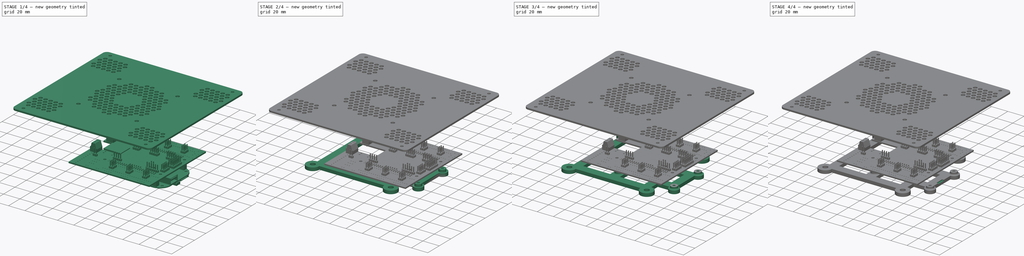
[diagram: build sequence overview — one tinted view per stage of 4, left to right]
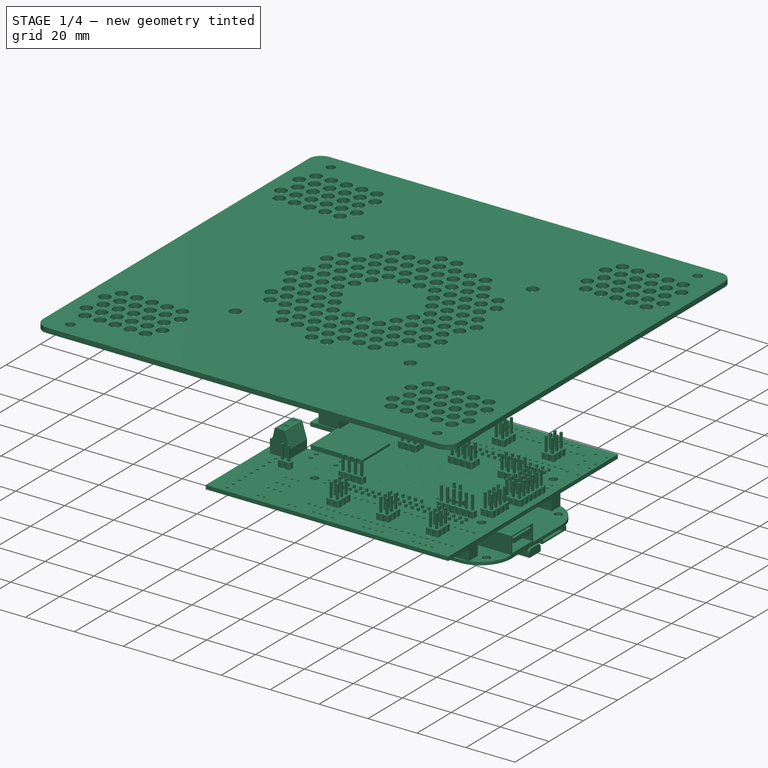
[diagram: stage 1 of 4 — iso view after this stage's code; geometry added in this stage tinted green]
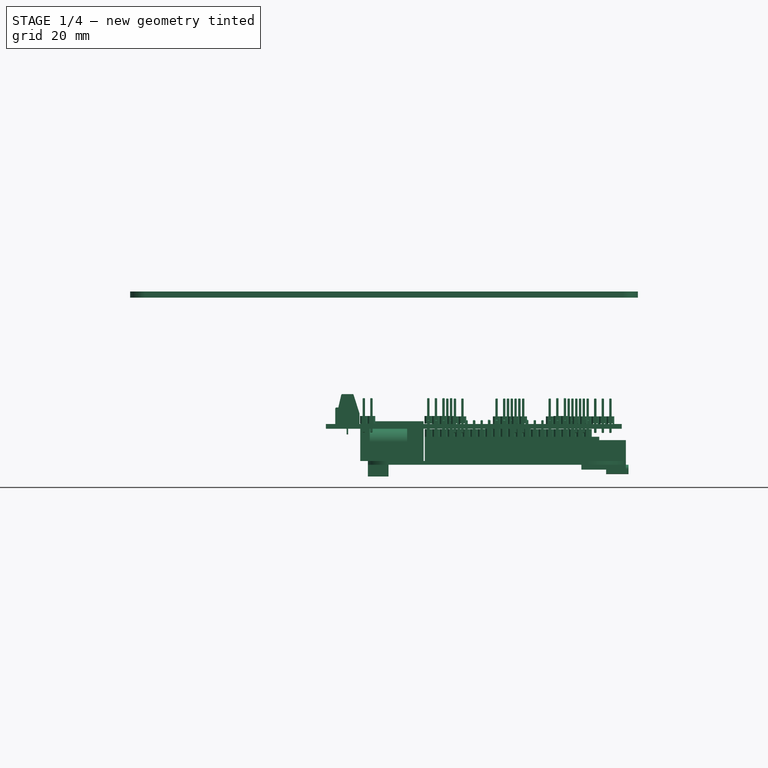
[diagram: stage 1 of 4 — front view after this stage's code; geometry added in this stage tinted green]
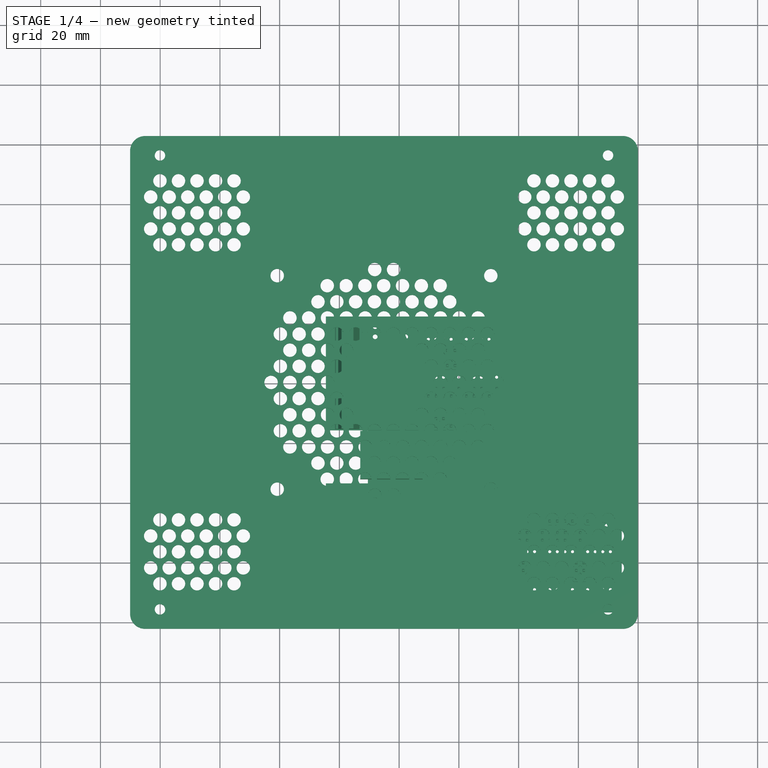
[diagram: stage 1 of 4 — top view after this stage's code; geometry added in this stage tinted green]
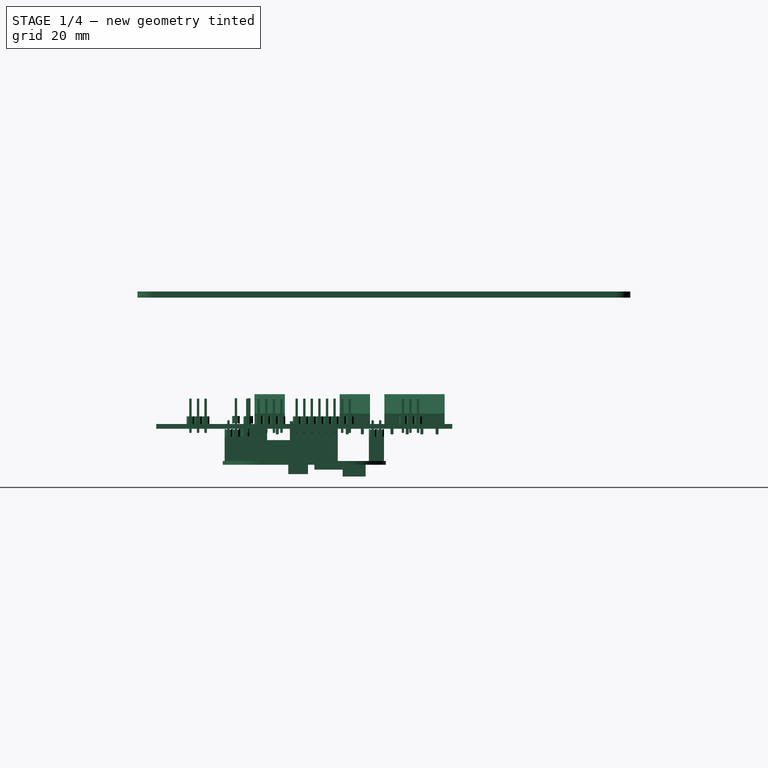
[diagram: stage 1 of 4 — right view after this stage's code; geometry added in this stage tinted green]
FCSTD DOCUMENT  (FreeCAD 0.15R4671 (Git))
Label: control_box_assembly_test
License: All rights reserved
LicenseURL: http://en.wikipedia.org/wiki/All_rights_reserved
objects: App::FeaturePython×28, Part::FeaturePython×5, Sketcher::SketchObject×3, PartDesign::Pad×2, PartDesign::Fillet×1, Part::MultiFuse×1, PartDesign::Pocket×1, PartDesign::Chamfer×1, Part::MultiCommon×1
note: 18 computed .brp shape members not serialized (recipe doc carries the construction recipe); baked Part::Feature solids carry a one-line shape summary decoded from their .brp

FEATURE [Part::FeaturePython] beaglebone_black_01  label="beaglebone_black"  # a2plus imported part (geometry in sourceFile) (typed FeaturePython)
  Placement = pos=(27,0,0) rot=(0,0,1;0rad)
  fixedPosition = true
  sourceFile = <userpath>/Grive/Lulzbot_TAZ_5/electronics/control_box/beaglebone_black.fcstd
  timeLastImport = 1.45782e+09
  updateColors = true
FEATURE [App::FeaturePython] planeConstraint04  label="planeConstraint04_brack_bot"  # a2plus constraint (typed FeaturePython)
  Object1 = Common
  Object2 = control_box_enclosure_01
  SubElement1 = Face44
  SubElement2 = Face44
  Type = plane
  directionConstraint = 0
  offset = 0
FEATURE [App::FeaturePython] planeConstraint04_mirror  label="planeConstraint04_brack_bot_"  # a2plus constraint (typed FeaturePython)
  Object1 = Common
  Object2 = control_box_enclosure_01
  SubElement1 = Face44
  SubElement2 = Face44
  Type = plane
  directionConstraint = 0
  offset = 0
FEATURE [App::FeaturePython] axialConstraint01  label="axialConstraint01_brack_pin1"  # a2plus constraint (typed FeaturePython)
  Object1 = control_box_enclosure_01
  Object2 = Common
  SubElement1 = Face85
  SubElement2 = Face41
  Type = axial
  directionConstraint = 0
  lockRotation = false
FEATURE [App::FeaturePython] axialConstraint01_mirror  label="axialConstraint01_brack_pin1_"  # a2plus constraint (typed FeaturePython)
  Object1 = control_box_enclosure_01
  Object2 = Common
  SubElement1 = Face85
  SubElement2 = Face41
  Type = axial
  directionConstraint = 0
  lockRotation = false
FEATURE [App::FeaturePython] axialConstraint02  label="axialConstraint02_brack_pin2"  # a2plus constraint (typed FeaturePython)
  Object1 = control_box_enclosure_01
  Object2 = Common
  SubElement1 = Face87
  SubElement2 = Face42
  Type = axial
  directionConstraint = 0
  lockRotation = false
FEATURE [App::FeaturePython] axialConstraint02_mirror  label="axialConstraint02_brack_pin2_"  # a2plus constraint (typed FeaturePython)
  Object1 = control_box_enclosure_01
  Object2 = Common
  SubElement1 = Face87
  SubElement2 = Face42
  Type = axial
  directionConstraint = 0
  lockRotation = false
FEATURE [Part::FeaturePython] CRAMPS_3D_step1_01  # a2plus imported part (geometry in sourceFile) (typed FeaturePython)
  Placement = pos=(-35.32,56.485,12.07) rot=(0,0,1;0rad)
  fixedPosition = false
  sourceFile = <userpath>/Grive/Lulzbot_TAZ_5/electronics/control_box/CRAMPS_3D.step
  timeLastImport = 1.45767e+09
  updateColors = true
FEATURE [App::FeaturePython] planeConstraint05  # a2plus constraint (typed FeaturePython)
  Object1 = beaglebone_black_01
  Object2 = CRAMPS_3D_step1_01
  SubElement1 = Face77
  SubElement2 = Face2060
  Type = plane
  directionConstraint = 0
  offset = 0
FEATURE [App::FeaturePython] planeConstraint05_mirror  label="planeConstraint05_"  # a2plus constraint (typed FeaturePython)
  Object1 = beaglebone_black_01
  Object2 = CRAMPS_3D_step1_01
  SubElement1 = Face77
  SubElement2 = Face2060
  Type = plane
  directionConstraint = 0
  offset = 0
FEATURE [App::FeaturePython] planeConstraint06  # a2plus constraint (typed FeaturePython)
  Object1 = CRAMPS_3D_step1_01
  Object2 = beaglebone_black_01
  SubElement1 = Face1344
  SubElement2 = Face62
  Type = plane
  directionConstraint = 0
  offset = 0
FEATURE [App::FeaturePython] planeConstraint06_mirror  label="planeConstraint06_"  # a2plus constraint (typed FeaturePython)
  Object1 = CRAMPS_3D_step1_01
  Object2 = beaglebone_black_01
  SubElement1 = Face1344
  SubElement2 = Face62
  Type = plane
  directionConstraint = 0
  offset = 0
FEATURE [App::FeaturePython] planeConstraint07  # a2plus constraint (typed FeaturePython)
  Object1 = CRAMPS_3D_step1_01
  Object2 = beaglebone_black_01
  SubElement1 = Face1690
  SubElement2 = Face60
  Type = plane
  directionConstraint = 0
  offset = 0
FEATURE [App::FeaturePython] planeConstraint07_mirror  label="planeConstraint07_"  # a2plus constraint (typed FeaturePython)
  Object1 = CRAMPS_3D_step1_01
  Object2 = beaglebone_black_01
  SubElement1 = Face1690
  SubElement2 = Face60
  Type = plane
  directionConstraint = 0
  offset = 0
FEATURE [Part::FeaturePython] _0mm_fan_igs1_01  # a2plus imported part (geometry in sourceFile) (typed FeaturePython)
  Placement = pos=(10.7919,-58.0615,-14.4383) rot=(1,0,0;1.5708rad)
  fixedPosition = false
  sourceFile = <userpath>/Grive/Lulzbot_TAZ_5/electronics/control_box/80mm_fan.igs
  timeLastImport = 1.45767e+09
  updateColors = true
FEATURE [Part::FeaturePython] electronics_cover_revA_fc0_1_01  # a2plus imported part (geometry in sourceFile) (typed FeaturePython)
  Placement = pos=(34.93,-0.640001,58.002) rot=(1,0,0;1.5708rad)
  fixedPosition = false
  sourceFile = <userpath>/Grive/Lulzbot_TAZ_5/electronics/control_box/electronics_cover_revA_fc0.1.fcstd
  timeLastImport = 1440915044
  updateColors = true
FEATURE [App::FeaturePython] planeConstraint08  # a2plus constraint (typed FeaturePython)
  Object1 = control_box_enclosure_01
  Object2 = electronics_cover_revA_fc0_1_01
  SubElement1 = Face95
  SubElement2 = Face5
  Type = plane
  directionConstraint = 1
  offset = 0
FEATURE [App::FeaturePython] planeConstraint08_mirror  label="planeConstraint08_"  # a2plus constraint (typed FeaturePython)
  Object1 = control_box_enclosure_01
  Object2 = electronics_cover_revA_fc0_1_01
  SubElement1 = Face95
  SubElement2 = Face5
  Type = plane
  directionConstraint = 1
  offset = 0
FEATURE [App::FeaturePython] planeConstraint09  # a2plus constraint (typed FeaturePython)
  Object1 = electronics_cover_revA_fc0_1_01
  Object2 = control_box_enclosure_01
  SubElement1 = Face7
  SubElement2 = Face16
  Type = plane
  directionConstraint = 0
  offset = 0
FEATURE [App::FeaturePython] planeConstraint09_mirror  label="planeConstraint09_"  # a2plus constraint (typed FeaturePython)
  Object1 = electronics_cover_revA_fc0_1_01
  Object2 = control_box_enclosure_01
  SubElement1 = Face7
  SubElement2 = Face16
  Type = plane
  directionConstraint = 0
  offset = 0
FEATURE [App::FeaturePython] planeConstraint10  # a2plus constraint (typed FeaturePython)
  Object1 = electronics_cover_revA_fc0_1_01
  Object2 = control_box_enclosure_01
  SubElement1 = Face1
  SubElement2 = Face18
  Type = plane
  directionConstraint = 0
  offset = 0
FEATURE [App::FeaturePython] planeConstraint10_mirror  label="planeConstraint10_"  # a2plus constraint (typed FeaturePython)
  Object1 = electronics_cover_revA_fc0_1_01
  Object2 = control_box_enclosure_01
  SubElement1 = Face1
  SubElement2 = Face18
  Type = plane
  directionConstraint = 0
  offset = 0
FEATURE [App::FeaturePython] axialConstraint03  # a2plus constraint (typed FeaturePython)
  Object1 = _0mm_fan_igs1_01
  Object2 = electronics_cover_revA_fc0_1_01
  SubElement1 = Face31
  SubElement2 = Face27
  Type = axial
  directionConstraint = 1
  lockRotation = true
FEATURE [App::FeaturePython] axialConstraint03_mirror  label="axialConstraint03_"  # a2plus constraint (typed FeaturePython)
  Object1 = _0mm_fan_igs1_01
  Object2 = electronics_cover_revA_fc0_1_01
  SubElement1 = Face31
  SubElement2 = Face27
  Type = axial
  directionConstraint = 1
  lockRotation = true
FEATURE [App::FeaturePython] planeConstraint11  # a2plus constraint (typed FeaturePython)
  Object1 = _0mm_fan_igs1_01
  Object2 = electronics_cover_revA_fc0_1_01
  SubElement1 = Face60
  SubElement2 = Face5
  Type = plane
  directionConstraint = 0
  offset = 0
FEATURE [App::FeaturePython] planeConstraint11_mirror  label="planeConstraint11_"  # a2plus constraint (typed FeaturePython)
  Object1 = _0mm_fan_igs1_01
  Object2 = electronics_cover_revA_fc0_1_01
  SubElement1 = Face60
  SubElement2 = Face5
  Type = plane
  directionConstraint = 0
  offset = 0
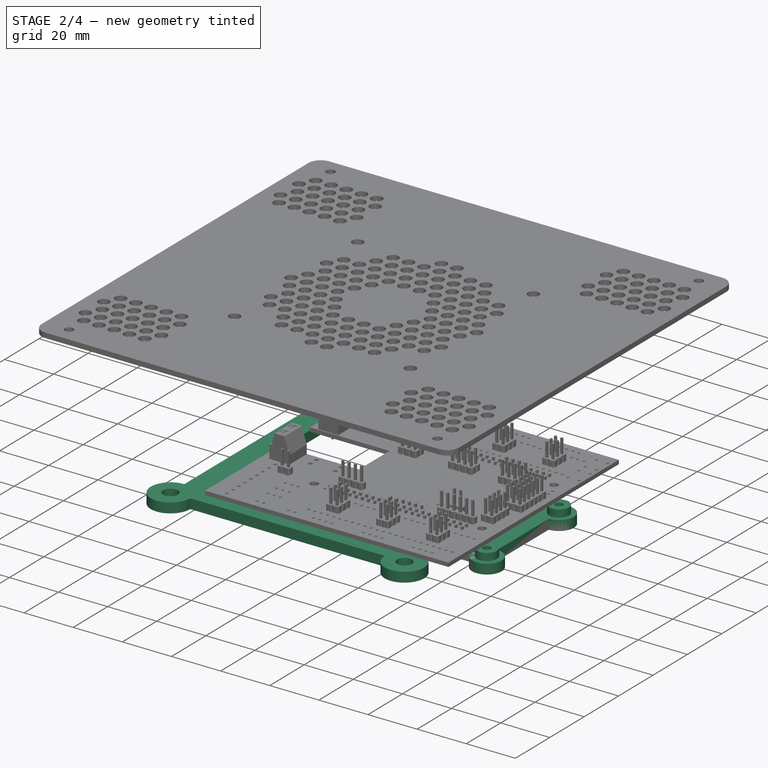
[diagram: stage 2 of 4 — iso view after this stage's code; geometry added in this stage tinted green]
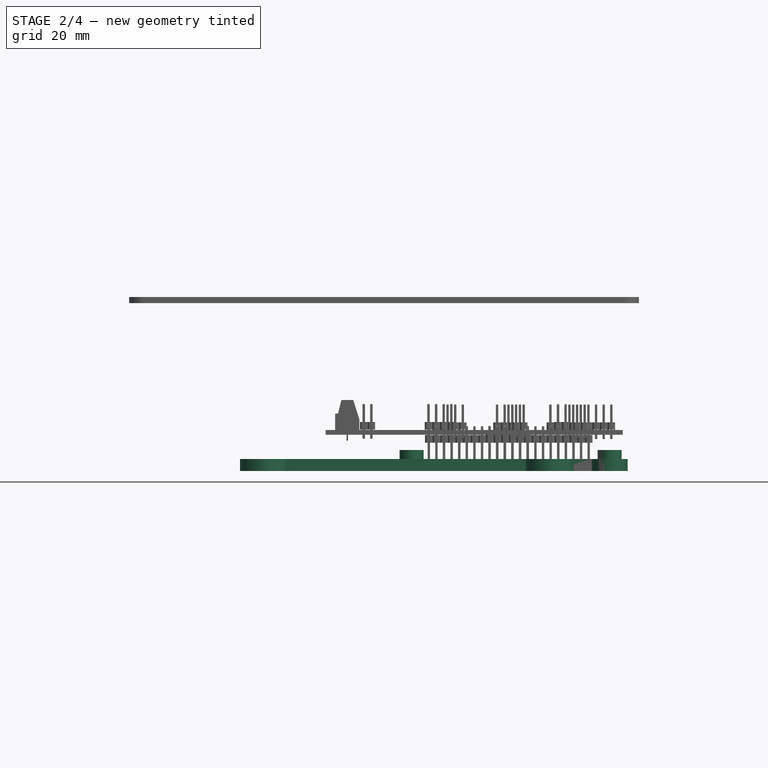
[diagram: stage 2 of 4 — front view after this stage's code; geometry added in this stage tinted green]
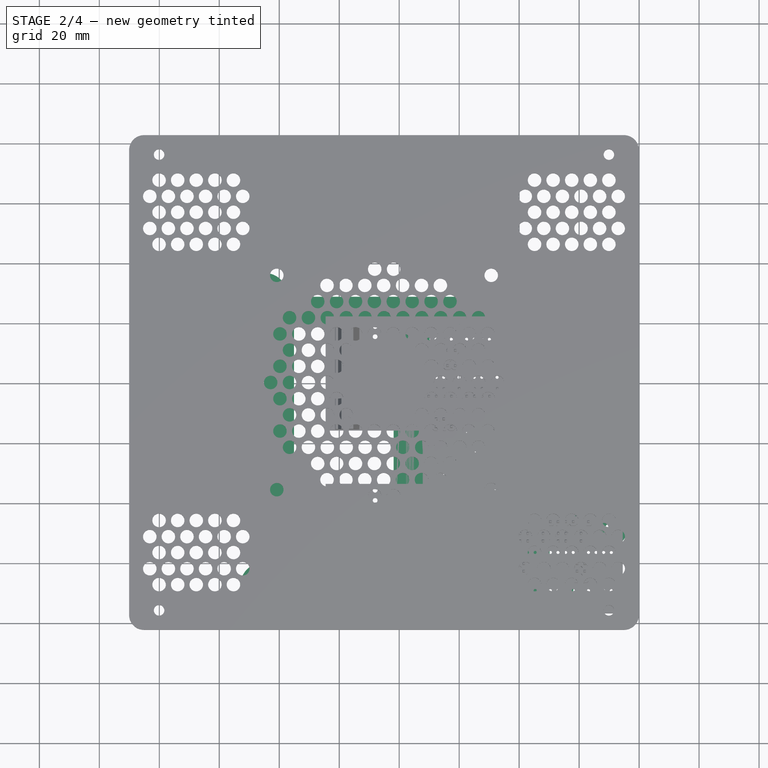
[diagram: stage 2 of 4 — top view after this stage's code; geometry added in this stage tinted green]
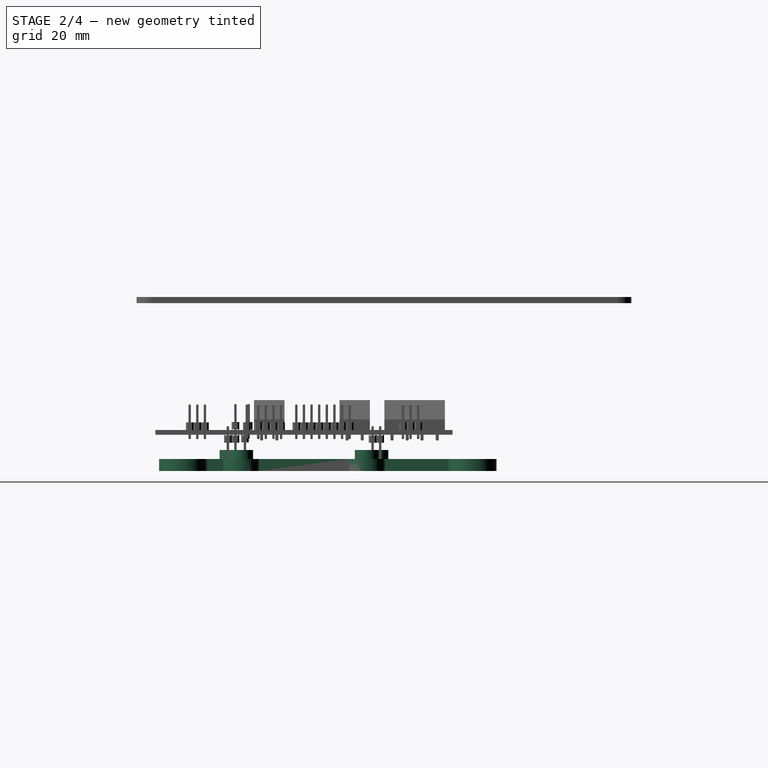
[diagram: stage 2 of 4 — right view after this stage's code; geometry added in this stage tinted green]
FEATURE [Part::FeaturePython] control_box_enclosure_01  label="control_box_enclosure"  # a2plus imported part (geometry in sourceFile) (typed FeaturePython)
  Placement = pos=(-50.07,-83.14,-9.03) rot=(0,0,1;0rad)
  fixedPosition = false
  sourceFile = <userpath>/Grive/Lulzbot_TAZ_5/electronics/control_box/control_box_enclosure.fcstd
  timeLastImport = 1457669303
  updateColors = true
FEATURE [App::FeaturePython] planeConstraint01  label="planeConstraint01_bb_vert"  # a2plus constraint (typed FeaturePython)
  Object1 = beaglebone_black_01
  Object2 = control_box_enclosure_01
  SubElement1 = Face6
  SubElement2 = Face44
  Type = plane
  directionConstraint = 1
  offset = 7
FEATURE [App::FeaturePython] planeConstraint01_mirror  label="planeConstraint01_bb_vert_"  # a2plus constraint (typed FeaturePython)
  Object1 = beaglebone_black_01
  Object2 = control_box_enclosure_01
  SubElement1 = Face6
  SubElement2 = Face44
  Type = plane
  directionConstraint = 1
  offset = 7
FEATURE [App::FeaturePython] planeConstraint02  label="planeConstraint02_bb_fb"  # a2plus constraint (typed FeaturePython)
  Object1 = beaglebone_black_01
  Object2 = control_box_enclosure_01
  SubElement1 = Face15
  SubElement2 = Face89
  Type = plane
  directionConstraint = 1
  offset = 2
FEATURE [App::FeaturePython] planeConstraint02_mirror  label="planeConstraint02_bb_fb_"  # a2plus constraint (typed FeaturePython)
  Object1 = beaglebone_black_01
  Object2 = control_box_enclosure_01
  SubElement1 = Face15
  SubElement2 = Face89
  Type = plane
  directionConstraint = 1
  offset = 2
FEATURE [App::FeaturePython] planeConstraint03  label="planeConstraint03_bb_lr"  # a2plus constraint (typed FeaturePython)
  Object1 = beaglebone_black_01
  Object2 = control_box_enclosure_01
  SubElement1 = Face20
  SubElement2 = Face90
  Type = plane
  directionConstraint = 0
  offset = 26.5
FEATURE [App::FeaturePython] planeConstraint03_mirror  label="planeConstraint03_bb_lr_"  # a2plus constraint (typed FeaturePython)
  Object1 = beaglebone_black_01
  Object2 = control_box_enclosure_01
  SubElement1 = Face20
  SubElement2 = Face90
  Type = plane
  directionConstraint = 0
  offset = 26.5
FEATURE [Sketcher::SketchObject] Sketch005  label="bbb_hole_pattern_plan"
  ExternalGeometry = -> [beaglebone_black_01,control_box_enclosure_01]
  sketch-geometry (34):
    g0: Circle CenterX=44.145 CenterY=-51.435 CenterZ=0 NormalX=0 NormalY=0 NormalZ=1 Radius=1.5
    g1: Circle CenterX=110.185 CenterY=-48.26 CenterZ=0 NormalX=0 NormalY=0 NormalZ=1 Radius=1.5
    g2: Circle CenterX=44.145 CenterY=-3.175 CenterZ=0 NormalX=0 NormalY=0 NormalZ=1 Radius=1.5
    g3: Circle CenterX=110.185 CenterY=-6.35 CenterZ=0 NormalX=0 NormalY=0 NormalZ=1 Radius=1.5
    g4: ArcOfCircle CenterX=-5.07 CenterY=28.88 CenterZ=0 NormalX=0 NormalY=0 NormalZ=1 Radius=8 StartAngle=0 EndAngle=4.71239
    g5: ArcOfCircle CenterX=-5.07 CenterY=-67.64 CenterZ=0 NormalX=0 NormalY=0 NormalZ=1 Radius=8 StartAngle=1.5708 EndAngle=6.28319
    g6: ArcOfCircle CenterX=90.18 CenterY=28.88 CenterZ=0 NormalX=0 NormalY=0 NormalZ=1 Radius=8 StartAngle=4.71239 EndAngle=9.42478
    g7: ArcOfCircle CenterX=90.18 CenterY=-67.64 CenterZ=0 NormalX=0 NormalY=0 NormalZ=1 Radius=8 StartAngle=3.14159 EndAngle=7.85398
    g8: LineSegment StartX=-5.07 StartY=20.88 StartZ=0 EndX=-5.07 EndY=-59.64 EndZ=0
    g9: LineSegment StartX=2.93 StartY=28.88 StartZ=0 EndX=82.18 EndY=28.88 EndZ=0
    g10: LineSegment StartX=2.93 StartY=-67.64 StartZ=0 EndX=82.18 EndY=-67.64 EndZ=0
    g11: LineSegment StartX=4.93 StartY=18.88 StartZ=0 EndX=38.145 EndY=18.88 EndZ=0
    g12: LineSegment StartX=38.145 StartY=18.88 StartZ=0 EndX=38.145 EndY=-57.64 EndZ=0
    g13: LineSegment StartX=38.145 StartY=-57.64 StartZ=0 EndX=4.93 EndY=-57.64 EndZ=0
    g14: LineSegment StartX=4.93 StartY=-57.64 StartZ=0 EndX=4.93 EndY=18.88 EndZ=0
    g15: LineSegment StartX=50.145 StartY=18.88 StartZ=0 EndX=80.18 EndY=18.88 EndZ=0
    g16: LineSegment StartX=80.18 StartY=18.88 StartZ=0 EndX=80.18 EndY=-57.64 EndZ=0
    g17: LineSegment StartX=80.18 StartY=-57.64 StartZ=0 EndX=50.145 EndY=-57.64 EndZ=0
    g18: LineSegment StartX=50.145 StartY=-57.64 StartZ=0 EndX=50.145 EndY=18.88 EndZ=0
    g19: LineSegment StartX=90.18 StartY=20.88 StartZ=0 EndX=90.18 EndY=-6.35 EndZ=0
    g20: LineSegment StartX=90.18 StartY=-6.35 StartZ=0 EndX=104.185 EndY=-6.35 EndZ=0
    g21: ArcOfCircle CenterX=110.185 CenterY=-6.35 CenterZ=0 NormalX=0 NormalY=0 NormalZ=1 Radius=6 StartAngle=4.71239 EndAngle=9.42478
    g22: LineSegment StartX=110.185 StartY=-12.35 StartZ=0 EndX=110.185 EndY=-42.26 EndZ=0
    g23: ArcOfCircle CenterX=110.185 CenterY=-48.26 CenterZ=0 NormalX=0 NormalY=0 NormalZ=1 Radius=6 StartAngle=3.14159 EndAngle=7.85398
    g24: LineSegment StartX=104.185 StartY=-48.26 StartZ=0 EndX=90.18 EndY=-48.26 EndZ=0
    g25: LineSegment StartX=90.18 StartY=-48.26 StartZ=0 EndX=90.18 EndY=-59.64 EndZ=0
    g26: LineSegment StartX=90.18 StartY=-16.35 StartZ=0 EndX=100.185 EndY=-16.35 EndZ=0
    g27: LineSegment StartX=100.185 StartY=-16.35 StartZ=0 EndX=100.185 EndY=-38.26 EndZ=0
    g28: LineSegment StartX=100.185 StartY=-38.26 StartZ=0 EndX=90.18 EndY=-38.26 EndZ=0
    g29: LineSegment StartX=90.18 StartY=-38.26 StartZ=0 EndX=90.18 EndY=-16.35 EndZ=0
    g30: Circle CenterX=-5.07 CenterY=28.88 CenterZ=0 NormalX=0 NormalY=0 NormalZ=1 Radius=3
    g31: Circle CenterX=-5.07 CenterY=-67.64 CenterZ=0 NormalX=0 NormalY=0 NormalZ=1 Radius=3
    g32: Circle CenterX=90.18 CenterY=-67.64 CenterZ=0 NormalX=0 NormalY=0 NormalZ=1 Radius=3
    g33: Circle CenterX=90.18 CenterY=28.88 CenterZ=0 NormalX=0 NormalY=0 NormalZ=1 Radius=3
  constraints (94):
    c: Coincident(g1,g-6)
    c: Coincident(g2,g-4)
    c: Coincident(g3,g-5)
    c: Equal(g0,g1)
    c: Equal(g1,g2)
    c: Equal(g2,g3)
    c: Radius(g0) = 1.5
    c: Coincident(g0,g-3)
    c: Coincident(g4,g-7)
    c: Coincident(g5,g-10)
    c: Coincident(g6,g-8)
    c: Coincident(g7,g-9)
    c: Coincident(g8,g4)
    c: Coincident(g8,g5)
    c: Vertical(g8)
    c: PointOnObject(g4,g8)
    c: Equal(g4,g5)
    c: Equal(g5,g7)
    c: Equal(g7,g6)
    c: Radius(g4) = 8
    c: Coincident(g9,g4)
    c: Horizontal(g9)
    c: Coincident(g6,g9)
    c: PointOnObject(g4,g9)
    c: Coincident(g10,g5)
    c: Coincident(g10,g7)
    c: Horizontal(g10)
    c: PointOnObject(g7,g10)
    c: Coincident(g11,g12)
    c: Coincident(g12,g13)
    c: Coincident(g13,g14)
    c: Coincident(g14,g11)
    c: Horizontal(g11)
    c: Horizontal(g13)
    c: Vertical(g12)
    c: Vertical(g14)
    c: DistanceX(g13,g5) = -10
    c: DistanceY(g13,g5) = -10
    c: DistanceY(g11,g4) = 10
    c: DistanceX(g2,g11) = -6
    c: Coincident(g15,g16)
    c: Coincident(g16,g17)
    c: Coincident(g17,g18)
    c: Coincident(g18,g15)
    c: Horizontal(g15)
    c: Horizontal(g17)
    c: Vertical(g16)
    c: Vertical(g18)
    c: DistanceX(g15,g6) = 10
    c: PointOnObject(g15,g11)
    c: PointOnObject(g17,g13)
    c: DistanceX(g2,g15) = 6
    c: Coincident(g19,g6)
    c: Vertical(g19)
    c: Coincident(g20,g19)
    c: Horizontal(g20)
    c: PointOnObject(g6,g19)
    c: Coincident(g21,g3)
    c: Coincident(g21,g20)
    c: PointOnObject(g3,g20)
    c: Coincident(g22,g21)
    c: Vertical(g22)
    c: Coincident(g23,g1)
    c: Coincident(g23,g22)
    c: Radius(g21) = 6
    c: Equal(g23,g21)
    c: PointOnObject(g3,g22)
    c: Coincident(g24,g23)
    c: Horizontal(g24)
    c: Coincident(g25,g24)
    c: Vertical(g25)
    c: Coincident(g7,g25)
    c: PointOnObject(g7,g25)
    c: PointOnObject(g1,g24)
    c: Coincident(g26,g27)
    c: Coincident(g27,g28)
    c: Coincident(g28,g29)
    c: Coincident(g29,g26)
    c: Horizontal(g26)
    c: Horizontal(g28)
    c: Vertical(g27)
    c: Vertical(g29)
    c: PointOnObject(g28,g25)
    c: DistanceY(g26,g19) = 10
    c: DistanceY(g28,g24) = -10
    c: DistanceX(g27,g22) = 10
    c: Coincident(g30,g4)
    c: Coincident(g31,g5)
    c: Coincident(g32,g7)
    c: Coincident(g33,g6)
    c: Equal(g30,g31)
    c: Equal(g31,g32)
    c: Equal(g32,g33)
    c: Radius(g30) = 3
FEATURE [PartDesign::Pad] Pad  label="bbb_hole_pattern"
  Length = 4
  Length2 = 100
  Sketch = -> Sketch005
  Type = 0
FEATURE [Sketcher::SketchObject] Sketch  label="top_supports"
  ExternalGeometry = -> [Pad]
  Placement = pos=(0,0,4) rot=(0,0,1;0rad)
  Support = -> Pad [Face36]
  sketch-geometry (8):
    g0: Circle CenterX=44.145 CenterY=-3.175 CenterZ=0 NormalX=0 NormalY=0 NormalZ=1 Radius=1.5
    g1: Circle CenterX=110.185 CenterY=-6.35 CenterZ=0 NormalX=0 NormalY=0 NormalZ=1 Radius=1.5
    g2: Circle CenterX=44.145 CenterY=-51.435 CenterZ=0 NormalX=0 NormalY=0 NormalZ=1 Radius=1.5
    g3: Circle CenterX=110.185 CenterY=-48.26 CenterZ=0 NormalX=0 NormalY=0 NormalZ=1 Radius=1.5
    g4: Circle CenterX=44.145 CenterY=-3.175 CenterZ=0 NormalX=0 NormalY=0 NormalZ=1 Radius=4
    g5: Circle CenterX=44.145 CenterY=-51.435 CenterZ=0 NormalX=0 NormalY=0 NormalZ=1 Radius=4
    g6: Circle CenterX=110.185 CenterY=-48.26 CenterZ=0 NormalX=0 NormalY=0 NormalZ=1 Radius=4
    g7: Circle CenterX=110.185 CenterY=-6.35 CenterZ=0 NormalX=0 NormalY=0 NormalZ=1 Radius=4
  constraints (16):
    c: Coincident(g0,g-3)
    c: Coincident(g1,g-6)
    c: Coincident(g2,g-4)
    c: Coincident(g3,g-5)
    c: Equal(g0,g2)
    c: Equal(g2,g3)
    c: Equal(g3,g1)
    c: Radius(g0) = 1.5
    c: Coincident(g4,g0)
    c: Coincident(g5,g2)
    c: Coincident(g6,g3)
    c: Coincident(g7,g1)
    c: Equal(g4,g7)
    c: Equal(g7,g6)
    c: Equal(g6,g5)
    c: Radius(g4) = 4
FEATURE [PartDesign::Pad] Pad001  label="top_supports_final"
  Length = 3
  Length2 = 100
  Sketch = -> Sketch
  Type = 0
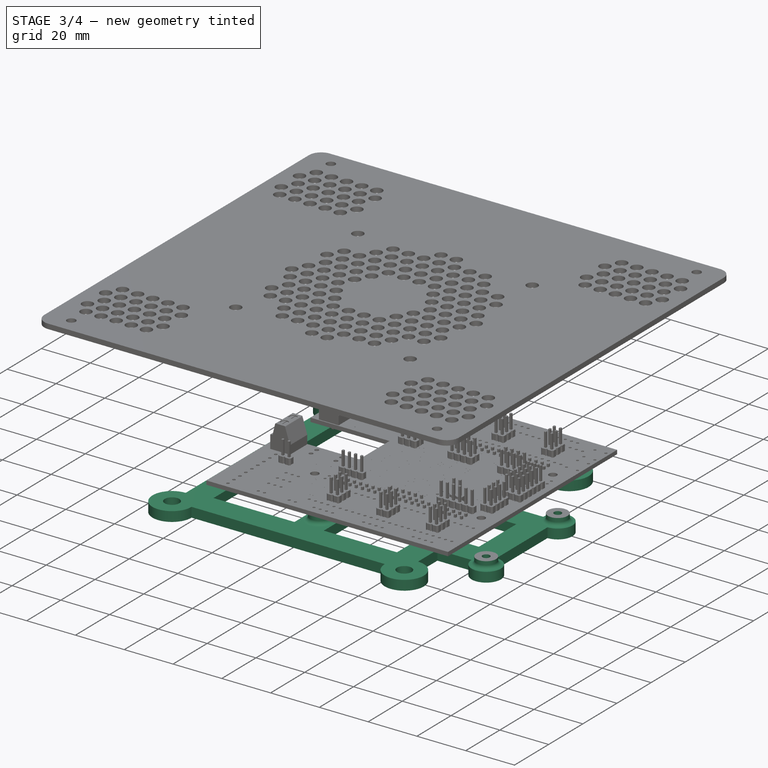
[diagram: stage 3 of 4 — iso view after this stage's code; geometry added in this stage tinted green]
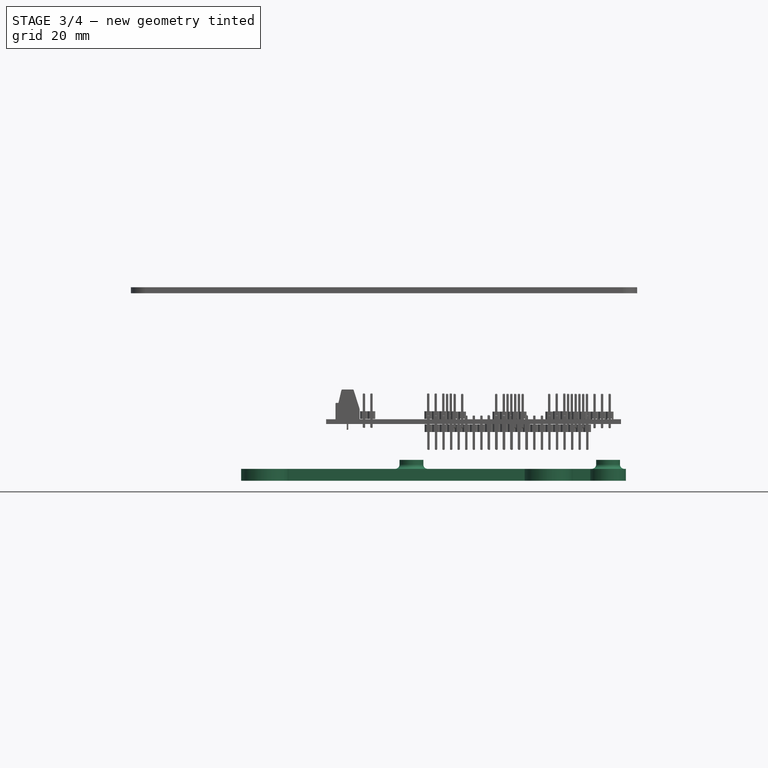
[diagram: stage 3 of 4 — front view after this stage's code; geometry added in this stage tinted green]
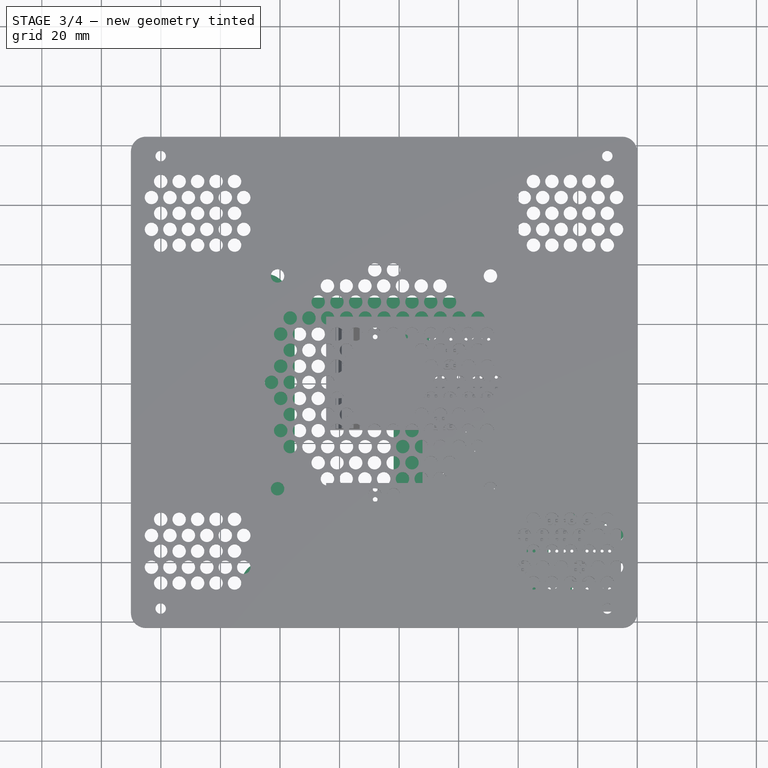
[diagram: stage 3 of 4 — top view after this stage's code; geometry added in this stage tinted green]
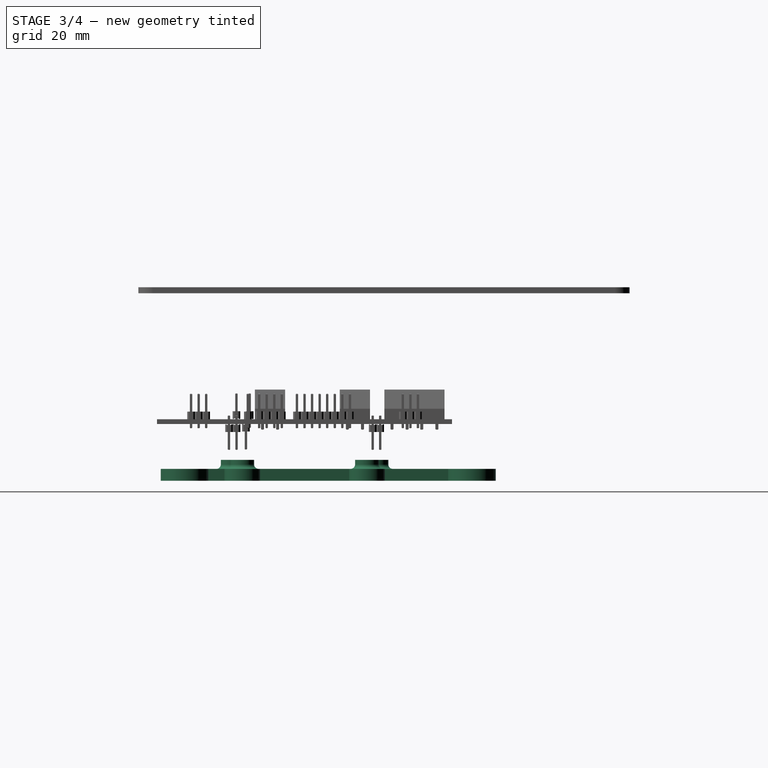
[diagram: stage 3 of 4 — right view after this stage's code; geometry added in this stage tinted green]
FEATURE [PartDesign::Fillet] Fillet  label="top_support_fillets"
  Base = -> Pad001 [Edge53,Edge60,Edge61,Edge59]
  Radius = 1.5
FEATURE [Part::MultiFuse] Fusion  label="base_rough"
  Placement = pos=(0,0,-7) rot=(0,0,1;0rad)
  Shapes = -> [Pad,Fillet,Pad001]
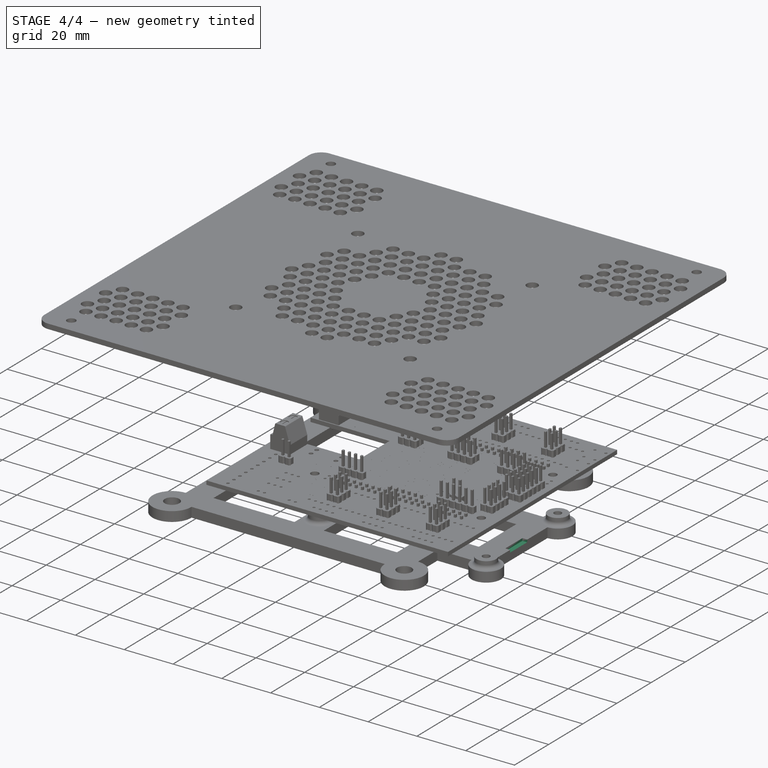
[diagram: stage 4 of 4 — iso view after this stage's code; geometry added in this stage tinted green]
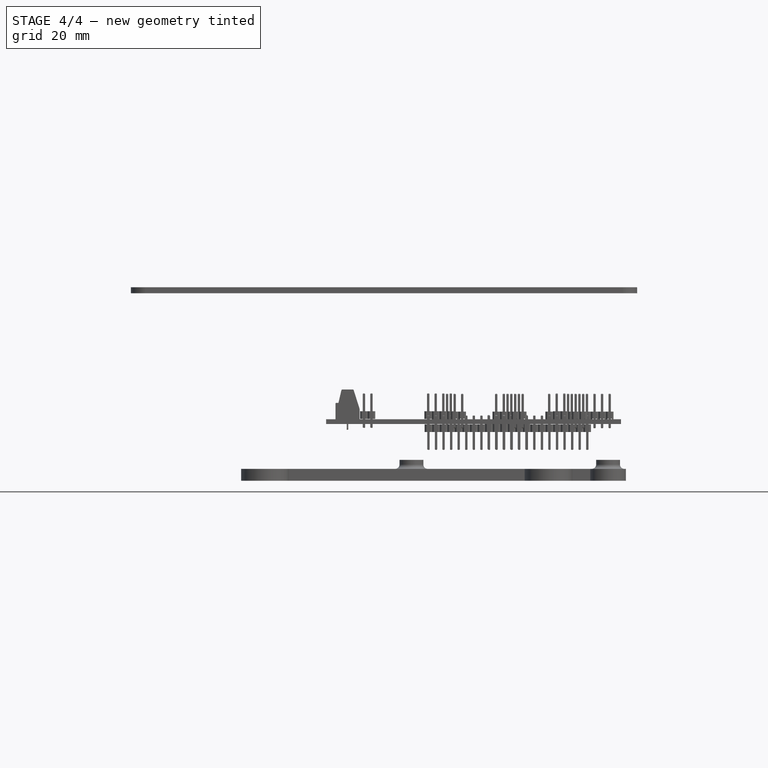
[diagram: stage 4 of 4 — front view after this stage's code; geometry added in this stage tinted green]
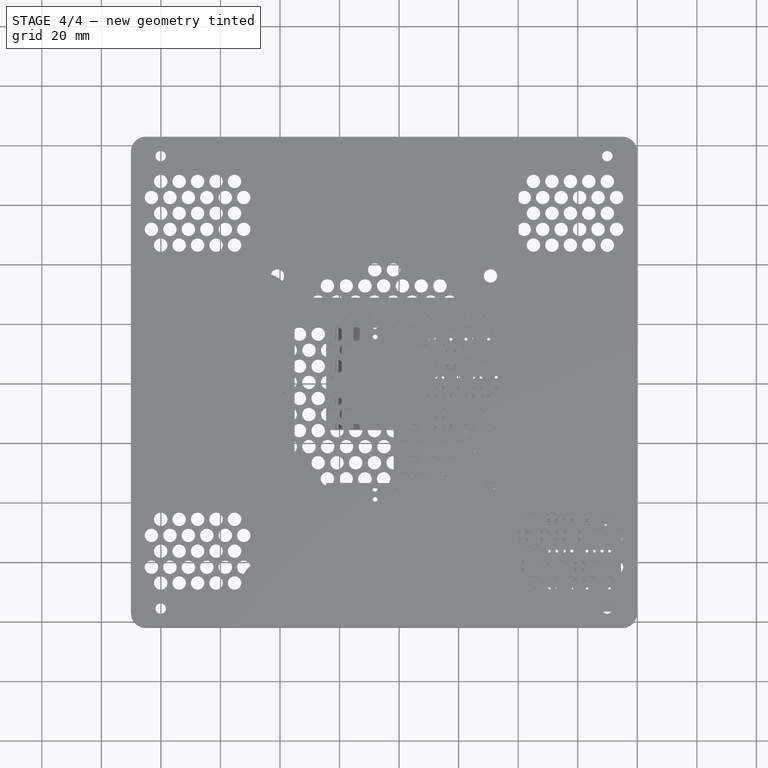
[diagram: stage 4 of 4 — top view after this stage's code; geometry added in this stage tinted green]
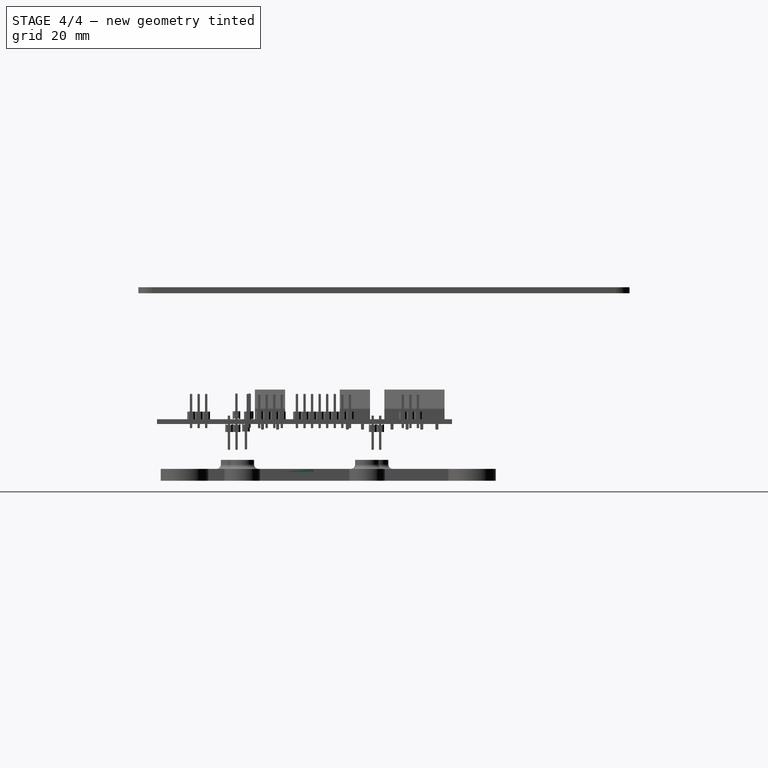
[diagram: stage 4 of 4 — right view after this stage's code; geometry added in this stage tinted green]
FEATURE [Sketcher::SketchObject] Sketch006  label="hdmi_clearance_plan"
  ExternalGeometry = -> [Fusion]
  Placement = pos=(110.185,0,-7) rot=(0.57735,0.57735,0.57735;2.0944rad)
  Support = -> Fusion [Face17]
  sketch-geometry (4):
    g0: LineSegment StartX=-34.26 StartY=3 StartZ=0 EndX=-24.26 EndY=3 EndZ=0
    g1: LineSegment StartX=-24.26 StartY=3 StartZ=0 EndX=-24.26 EndY=4 EndZ=0
    g2: LineSegment StartX=-24.26 StartY=4 StartZ=0 EndX=-34.26 EndY=4 EndZ=0
    g3: LineSegment StartX=-34.26 StartY=4 StartZ=0 EndX=-34.26 EndY=3 EndZ=0
  constraints (12):
    c: Coincident(g0,g1)
    c: Coincident(g1,g2)
    c: Coincident(g2,g3)
    c: Coincident(g3,g0)
    c: Horizontal(g0)
    c: Horizontal(g2)
    c: Vertical(g1)
    c: Vertical(g3)
    c: PointOnObject(g2,g-3)
    c: DistanceX(g2,g-3) = -8
    c: DistanceX(g0) = 10
    c: DistanceY(g1) = 1
FEATURE [PartDesign::Pocket] Pocket  label="hdmi_clearance"
  Length = 2
  Placement = pos=(0,0,-7) rot=(0,0,1;0rad)
  Sketch = -> Sketch006
  Type = 0
FEATURE [PartDesign::Chamfer] Chamfer
  Base = -> Fusion [Edge110,Edge111,Edge112,Edge108]
  Placement = pos=(0,0,-7) rot=(0,0,1;0rad)
  Size = 1.5
FEATURE [Part::MultiCommon] Common  label="bbb_support_bracket"
  Shapes = -> [Fusion,Pocket,Chamfer]
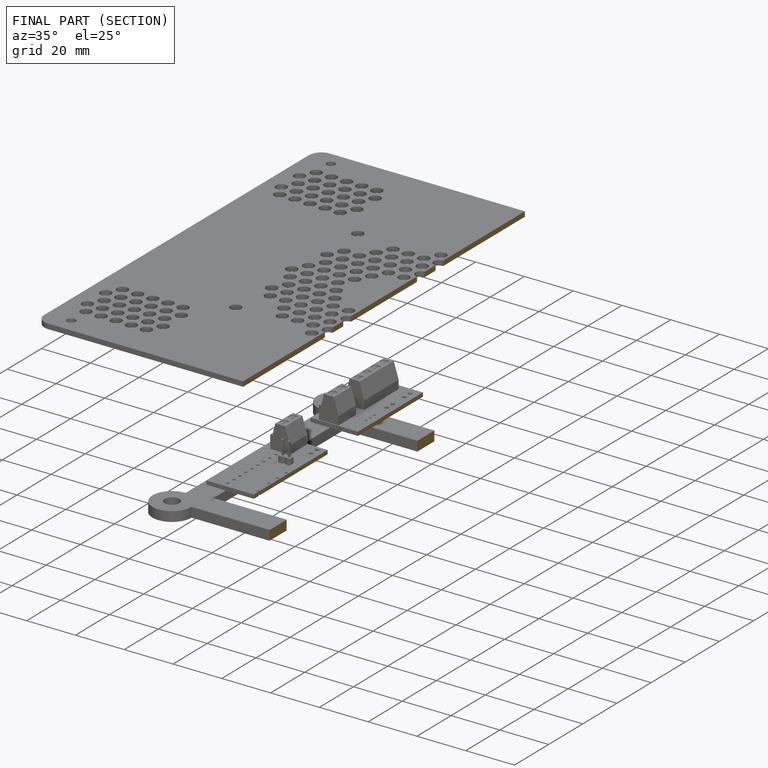
[diagram: finished part — half-section view (interior)]
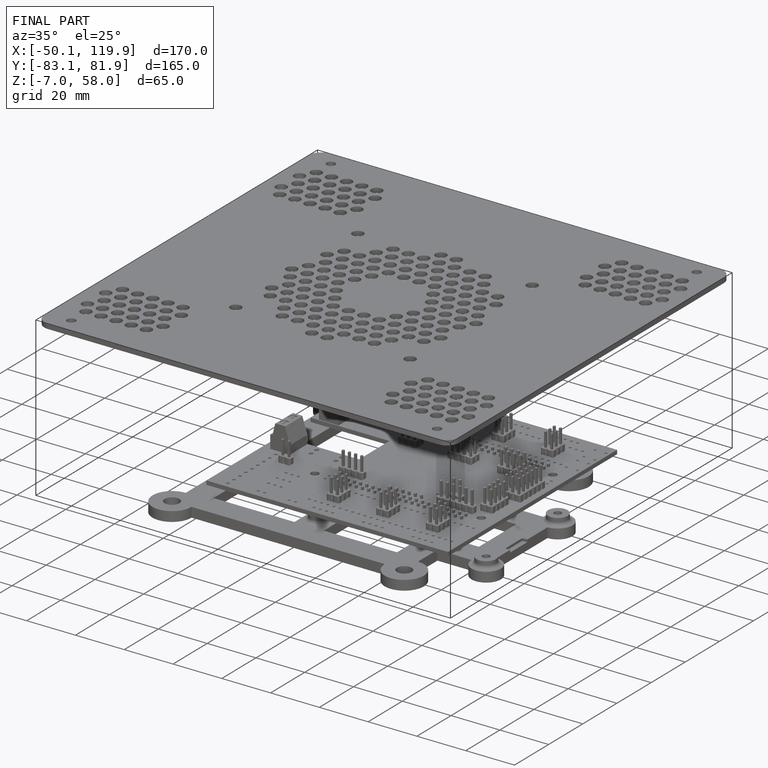
[diagram: finished part — iso view with bounding-box wireframe]
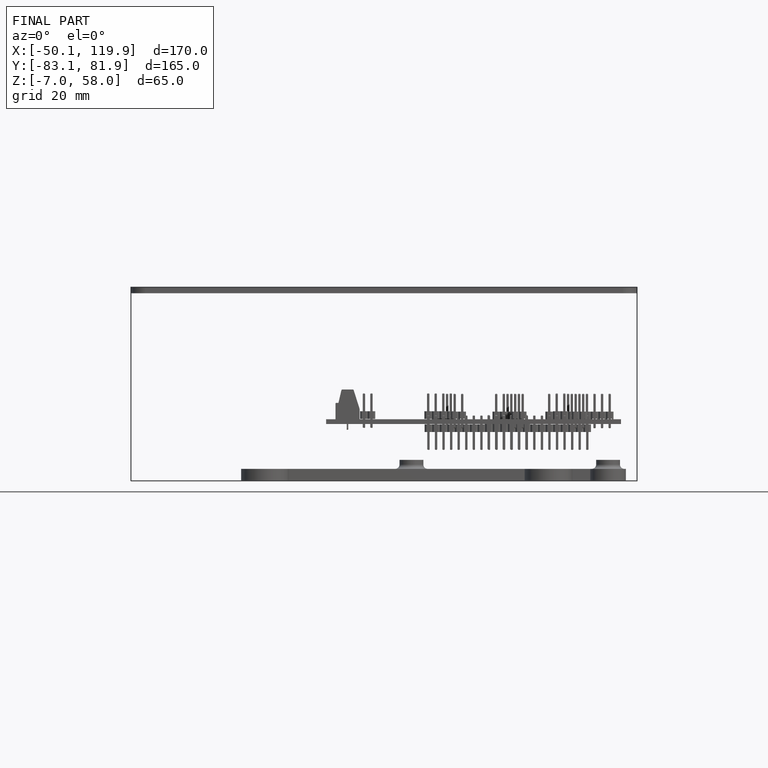
[diagram: finished part — front view with bounding-box wireframe]
